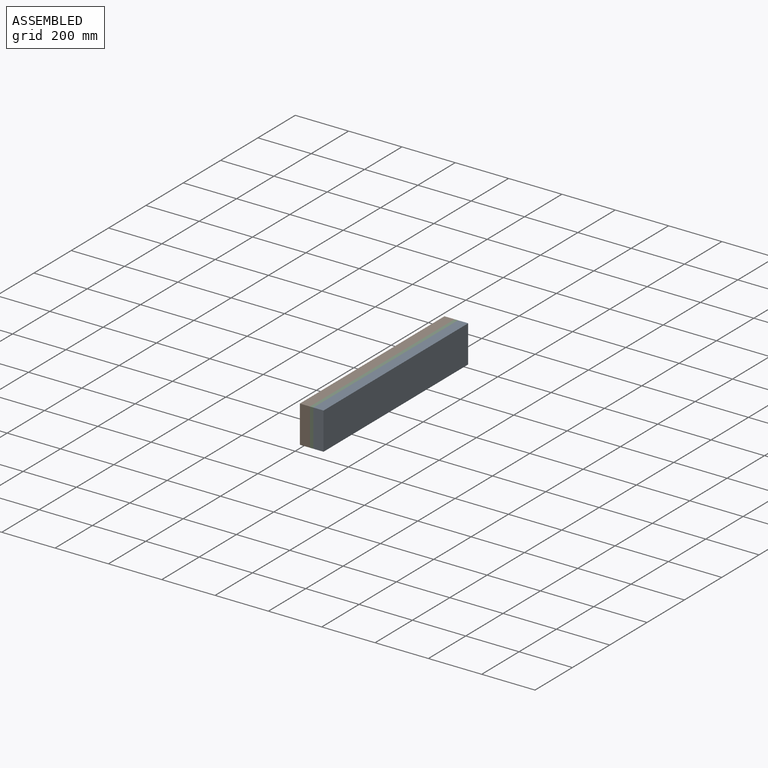
[diagram: assembled view]
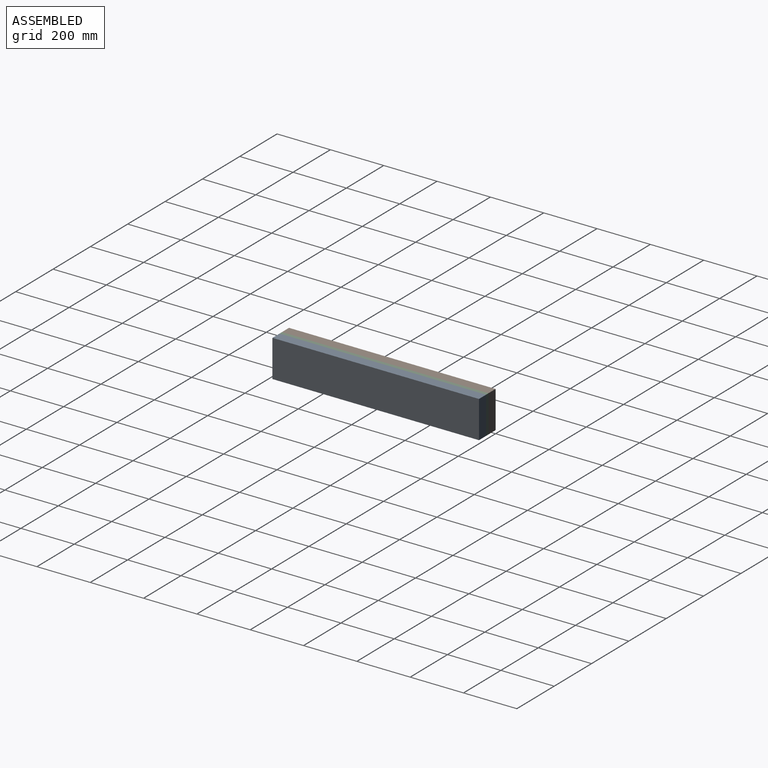
[diagram: assembled view, second angle]
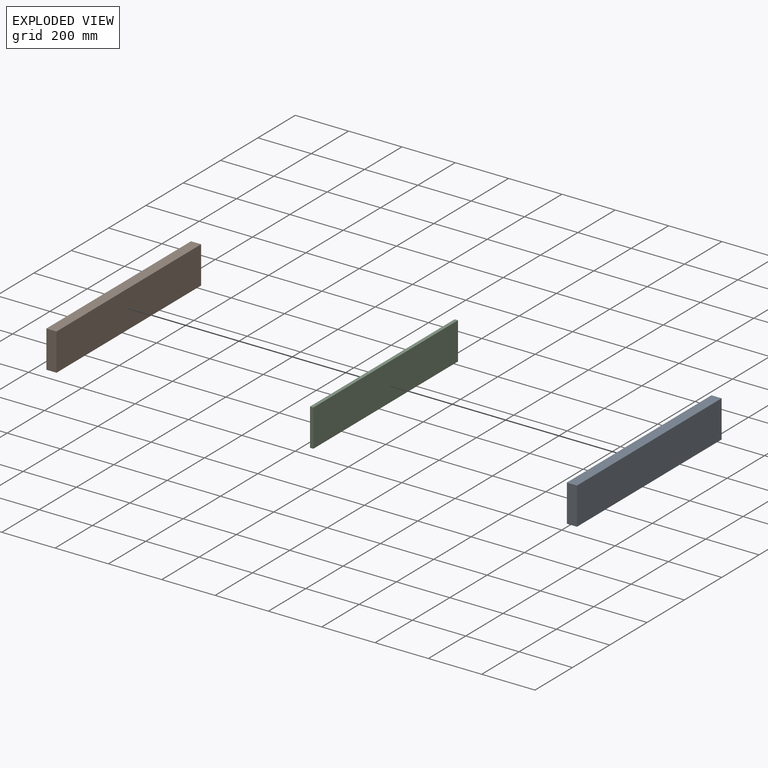
[diagram: exploded view]
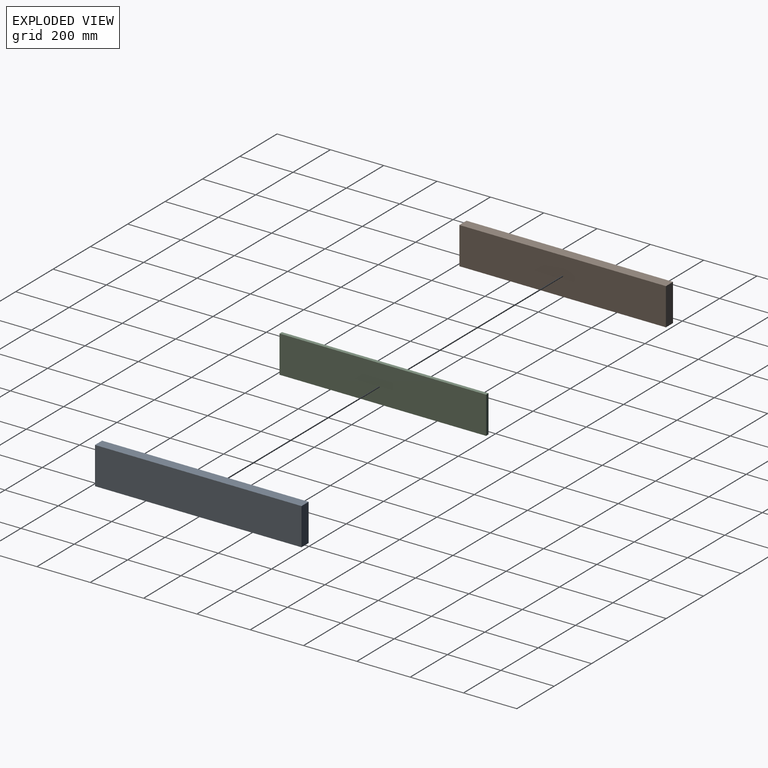
[diagram: exploded view, second angle]
ASSEMBLY  parts=3 mates=2
PART A: 6 faces, bbox 38.1x774.7x139.7 mm
  f0: plane 774.7x139.7mm, normal (-1,0,0), area 108225.6mm2, adj f1,f3,f4,f5
  f1: plane 774.7x38.1mm, normal (0,0,-1), area 29516.1mm2, adj f0,f2,f4,f5
  f2: plane 774.7x139.7mm, normal (1,0,0), area 108225.6mm2, adj f1,f3,f4,f5
  f3: plane 774.7x38.1mm, normal (0,0,1), area 29516.1mm2, adj f0,f2,f4,f5
  f4: plane 139.7x38.1mm, normal (0,-1,0), area 5322.6mm2, adj f0,f1,f2,f3
  f5: plane 139.7x38.1mm, normal (0,1,0), area 5322.6mm2, adj f0,f1,f2,f3
PART B: same geometry as A
PART C: 6 faces, bbox 774.7x139.7x12.7 mm
  f0: plane 139.7x12.7mm, normal (-1,0,0), area 1774.2mm2, adj f1,f3,f4,f5
  f1: plane 774.7x12.7mm, normal (0,-1,0), area 9838.7mm2, adj f0,f2,f4,f5
  f2: plane 139.7x12.7mm, normal (1,0,0), area 1774.2mm2, adj f1,f3,f4,f5
  f3: plane 774.7x12.7mm, normal (0,1,0), area 9838.7mm2, adj f0,f2,f4,f5
  f4: plane 774.7x139.7mm, normal (0,0,1), area 108225.6mm2, adj f0,f1,f2,f3
  f5: plane 774.7x139.7mm, normal (0,0,-1), area 108225.6mm2, adj f0,f1,f2,f3
PLACE A t=(50.8,0,0)mm
PLACE B at identity
PLACE C rot(axis=(0.58,-0.58,-0.58),120deg) t=(50.8,0,0)mm
MATE fastened C.f5 <-> A.f0  axis (1,0,0) through (50.8,-774.7,69.85)mm
MATE fastened C.f4 <-> B.f2  axis (-1,0,0) through (38.1,-774.7,69.85)mm
